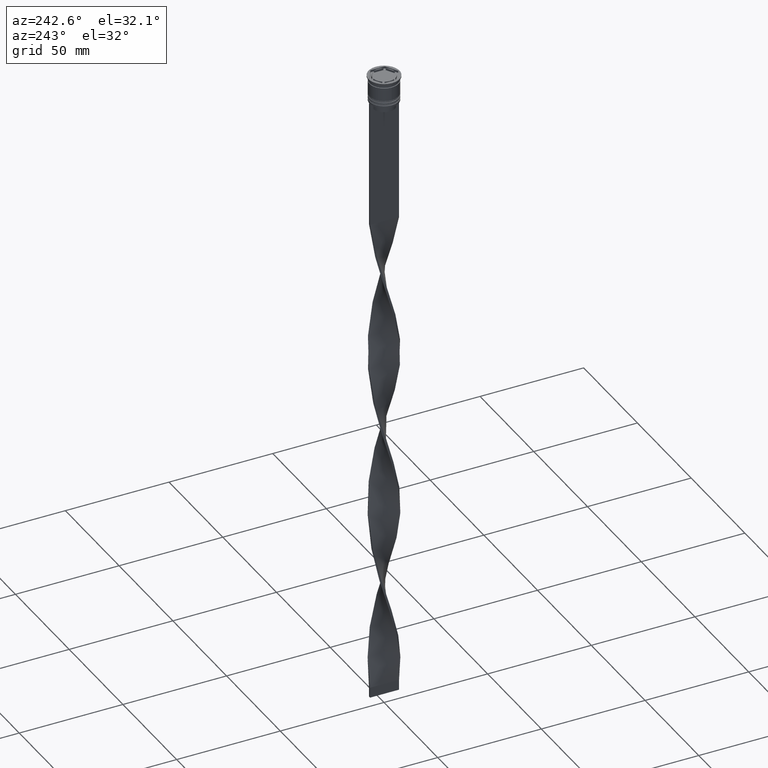
[diagram: clean part render]
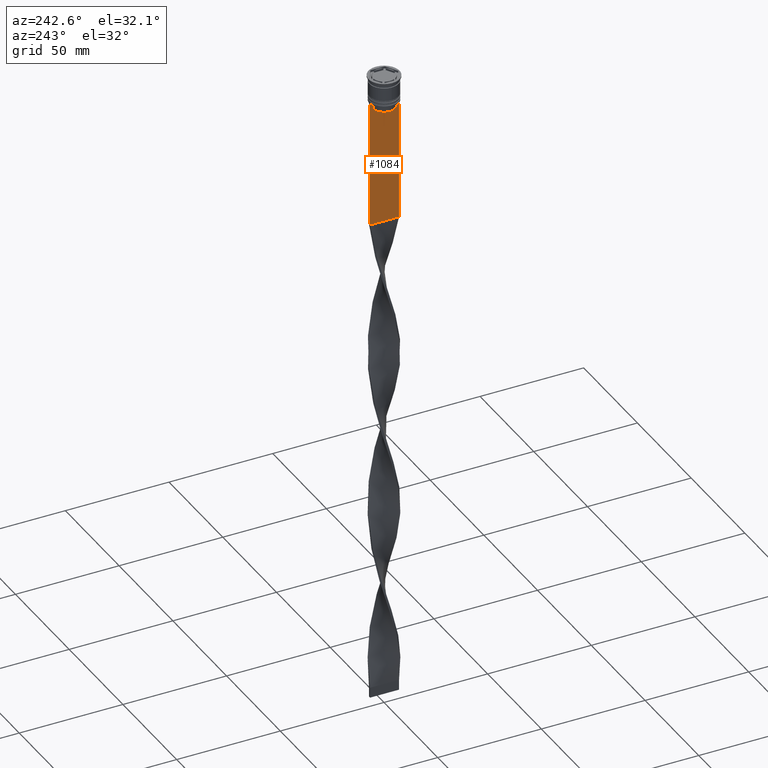
[diagram: same view with one face highlighted and labeled with its STEP entity id]
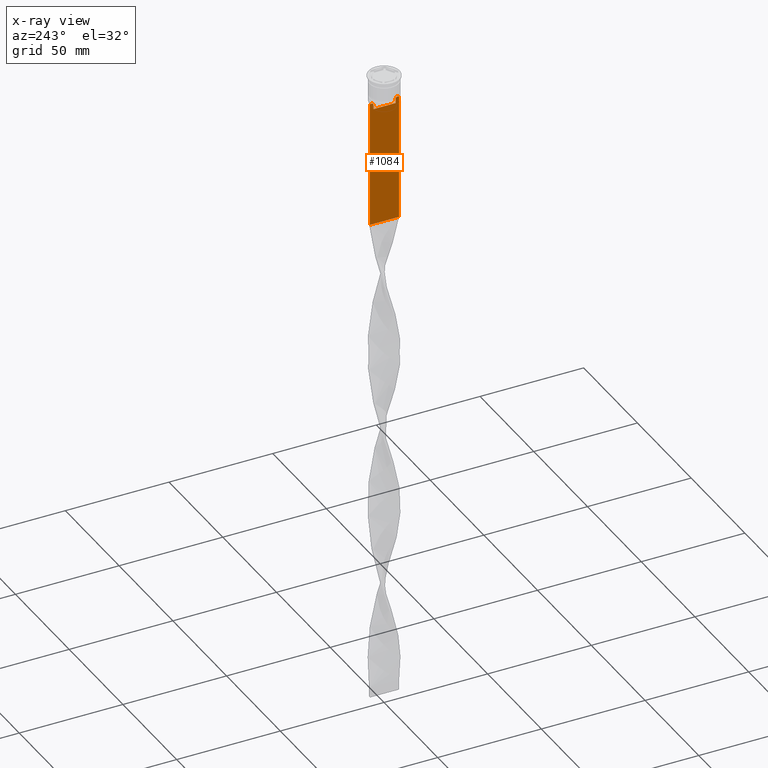
[diagram: x-ray of the same camera — body ghosted, the highlighted face saturated]
A machine part, auxiliary view. The second image highlights one B-rep face of the part: STEP entity #1084.
The next image is the same camera in x-ray: the body ghosted, the highlighted face saturated — about 0% of this face is hidden behind the body in this view.
In plain terms, the highlighted planar face has unit normal (-1, 0, 0).
Its self-contained STEP definition (entity closure, byte-faithful):
#43 = VERTEX_POINT ( 'NONE', #3678 ) ;
#84 = B_SPLINE_CURVE_WITH_KNOTS ( 'NONE', 3,
 ( #379, #2898, #2278, #706 ),
 .UNSPECIFIED., .F., .F.,
 ( 4, 4 ),
 ( 0.01003009312103698807, 0.01073859663834952557 ),
 .UNSPECIFIED. ) ;
#130 = EDGE_CURVE ( 'NONE', #43, #486, #3761, .T. ) ;
#164 = VECTOR ( 'NONE', #2920, 1000.000000000000000 ) ;
#177 = EDGE_LOOP ( 'NONE', ( #3302, #2342, #4015, #3136, #2027, #2929, #261, #3930, #2689, #2105, #2482, #1439 ) ) ;
#238 = CARTESIAN_POINT ( 'NONE',  ( -0.5000000000000000000, 7.000000000000002665, 1.535668847618198329 ) ) ;
#261 = ORIENTED_EDGE ( 'NONE', *, *, #1901, .F. ) ;
#286 = EDGE_CURVE ( 'NONE', #437, #2560, #686, .T. ) ;
#337 = EDGE_CURVE ( 'NONE', #2011, #3212, #4112, .T. ) ;
#377 = VECTOR ( 'NONE', #3650, 1000.000000000000000 ) ;
#379 = CARTESIAN_POINT ( 'NONE',  ( -0.5000000000000000000, 5.878775382679629402, -12.50000000000000000 ) ) ;
#389 = VECTOR ( 'NONE', #2487, 1000.000000000000000 ) ;
#437 = VERTEX_POINT ( 'NONE', #1388 ) ;
#453 = CARTESIAN_POINT ( 'NONE',  ( -0.5000000000000000000, -6.999999999999997335, -73.50000000000001421 ) ) ;
#486 = VERTEX_POINT ( 'NONE', #827 ) ;
#539 = EDGE_CURVE ( 'NONE', #3212, #437, #1675, .T. ) ;
#621 = CARTESIAN_POINT ( 'NONE',  ( -0.5000000000000000000, 6.881860213634102053, -12.50000000000000000 ) ) ;
#686 = LINE ( 'NONE', #2527, #164 ) ;
#706 = CARTESIAN_POINT ( 'NONE',  ( -0.5000000000000000000, 5.376802023508029826, -13.00000000000000178 ) ) ;
#719 = CARTESIAN_POINT ( 'NONE',  ( -0.5000000000000000000, -5.878775382679629402, -12.50000000000000000 ) ) ;
#727 = DIRECTION ( 'NONE',  ( 0.000000000000000000, 0.000000000000000000, -1.000000000000000000 ) ) ;
#807 = EDGE_CURVE ( 'NONE', #3461, #486, #4066, .T. ) ;
#820 = FACE_OUTER_BOUND ( 'NONE', #177, .T. ) ;
#827 = CARTESIAN_POINT ( 'NONE',  ( -0.5000000000000000000, 7.000000000000002665, -73.50000000000001421 ) ) ;
#841 = PLANE ( 'NONE',  #957 ) ;
#957 = AXIS2_PLACEMENT_3D ( 'NONE', #1751, #1812, #2709 ) ;
#964 = LINE ( 'NONE', #2502, #2818 ) ;
#1084 = ADVANCED_FACE ( 'NONE', ( #820 ), #841, .T. ) ;
#1097 = CARTESIAN_POINT ( 'NONE',  ( -0.5000000000000000000, 5.400000000000003908, -15.50000000000000000 ) ) ;
#1107 = LINE ( 'NONE', #3997, #1703 ) ;
#1148 = CARTESIAN_POINT ( 'NONE',  ( -0.5000000000000000000, -5.711478856069293286, -12.66669469529570335 ) ) ;
#1150 = VECTOR ( 'NONE', #3114, 1000.000000000000000 ) ;
#1388 = CARTESIAN_POINT ( 'NONE',  ( -0.5000000000000000000, -5.376802023508029826, -15.50000000000000000 ) ) ;
#1439 = ORIENTED_EDGE ( 'NONE', *, *, #337, .F. ) ;
#1448 = CARTESIAN_POINT ( 'NONE',  ( -0.5000000000000000000, -5.544156999454441959, -12.83336396790503642 ) ) ;
#1483 = DIRECTION ( 'NONE',  ( 0.000000000000000000, -1.000000000000000000, 0.000000000000000000 ) ) ;
#1544 = CARTESIAN_POINT ( 'NONE',  ( -0.5000000000000000000, -6.999999999999997335, -12.50000000000000000 ) ) ;
#1550 = CARTESIAN_POINT ( 'NONE',  ( -0.5000000000000000000, -6.999999999999997335, -73.50000000000001421 ) ) ;
#1553 = CARTESIAN_POINT ( 'NONE',  ( -0.5000000000000000000, -6.999999999999997335, 1.535668847618198329 ) ) ;
#1670 = EDGE_CURVE ( 'NONE', #1860, #2981, #2734, .T. ) ;
#1675 = LINE ( 'NONE', #1097, #2746 ) ;
#1703 = VECTOR ( 'NONE', #3638, 1000.000000000000000 ) ;
#1751 = CARTESIAN_POINT ( 'NONE',  ( -0.5000000000000000000, -6.999999999999997335, 1.535668847618198329 ) ) ;
#1795 = CARTESIAN_POINT ( 'NONE',  ( -0.5000000000000000000, 5.878775382679629402, -12.50000000000000000 ) ) ;
#1812 = DIRECTION ( 'NONE',  ( -1.000000000000000000, 0.000000000000000000, 0.000000000000000000 ) ) ;
#1836 = CARTESIAN_POINT ( 'NONE',  ( -0.5000000000000000000, -5.376802023508029826, -13.00000000000000178 ) ) ;
#1860 = VERTEX_POINT ( 'NONE', #621 ) ;
#1867 = VERTEX_POINT ( 'NONE', #3768 ) ;
#1901 = EDGE_CURVE ( 'NONE', #1867, #3152, #964, .T. ) ;
#2011 = VERTEX_POINT ( 'NONE', #2602 ) ;
#2027 = ORIENTED_EDGE ( 'NONE', *, *, #807, .F. ) ;
#2069 = B_SPLINE_CURVE_WITH_KNOTS ( 'NONE', 3,
 ( #1836, #1448, #1148, #3057 ),
 .UNSPECIFIED., .F., .F.,
 ( 4, 4 ),
 ( 0.02539176325380714666, 0.02610162431828674801 ),
 .UNSPECIFIED. ) ;
#2088 = VECTOR ( 'NONE', #2815, 1000.000000000000000 ) ;
#2105 = ORIENTED_EDGE ( 'NONE', *, *, #286, .F. ) ;
#2209 = CARTESIAN_POINT ( 'NONE',  ( -0.5000000000000000000, 5.376802023508029826, -15.50000000000000000 ) ) ;
#2278 = CARTESIAN_POINT ( 'NONE',  ( -0.5000000000000000000, 5.544156989057553275, -12.83336397825725861 ) ) ;
#2279 = CARTESIAN_POINT ( 'NONE',  ( -0.5000000000000000000, 5.376802023508029826, 0.000000000000000000 ) ) ;
#2339 = EDGE_CURVE ( 'NONE', #3376, #1867, #2996, .T. ) ;
#2342 = ORIENTED_EDGE ( 'NONE', *, *, #1670, .F. ) ;
#2482 = ORIENTED_EDGE ( 'NONE', *, *, #539, .F. ) ;
#2487 = DIRECTION ( 'NONE',  ( 0.000000000000000000, 0.000000000000000000, -1.000000000000000000 ) ) ;
#2502 = CARTESIAN_POINT ( 'NONE',  ( -0.5000000000000000000, -6.999999999999997335, -12.50000000000000000 ) ) ;
#2527 = CARTESIAN_POINT ( 'NONE',  ( -0.5000000000000000000, -5.376802023508029826, 0.000000000000000000 ) ) ;
#2560 = VERTEX_POINT ( 'NONE', #4059 ) ;
#2602 = CARTESIAN_POINT ( 'NONE',  ( -0.5000000000000000000, 5.376802023508029826, -13.00000000000000178 ) ) ;
#2689 = ORIENTED_EDGE ( 'NONE', *, *, #3008, .F. ) ;
#2709 = DIRECTION ( 'NONE',  ( 0.000000000000000000, 0.000000000000000000, 1.000000000000000000 ) ) ;
#2734 = LINE ( 'NONE', #3990, #377 ) ;
#2746 = VECTOR ( 'NONE', #2965, 1000.000000000000000 ) ;
#2815 = DIRECTION ( 'NONE',  ( 0.000000000000000000, 1.000000000000000000, 0.000000000000000000 ) ) ;
#2818 = VECTOR ( 'NONE', #3120, 1000.000000000000000 ) ;
#2898 = CARTESIAN_POINT ( 'NONE',  ( -0.5000000000000000000, 5.711478846560141598, -12.66669470477064685 ) ) ;
#2920 = DIRECTION ( 'NONE',  ( -0.000000000000000000, -0.000000000000000000, 1.000000000000000000 ) ) ;
#2929 = ORIENTED_EDGE ( 'NONE', *, *, #3751, .F. ) ;
#2965 = DIRECTION ( 'NONE',  ( 0.000000000000000000, -1.000000000000000000, 0.000000000000000000 ) ) ;
#2981 = VERTEX_POINT ( 'NONE', #1795 ) ;
#2996 = LINE ( 'NONE', #3982, #3419 ) ;
#3008 = EDGE_CURVE ( 'NONE', #2560, #3376, #2069, .T. ) ;
#3057 = CARTESIAN_POINT ( 'NONE',  ( -0.5000000000000000000, -5.878775382679629402, -12.50000000000000000 ) ) ;
#3075 = VECTOR ( 'NONE', #727, 1000.000000000000000 ) ;
#3114 = DIRECTION ( 'NONE',  ( 0.000000000000000000, 0.000000000000000000, -1.000000000000000000 ) ) ;
#3120 = DIRECTION ( 'NONE',  ( 0.000000000000000000, -1.000000000000000000, 0.000000000000000000 ) ) ;
#3136 = ORIENTED_EDGE ( 'NONE', *, *, #130, .T. ) ;
#3152 = VERTEX_POINT ( 'NONE', #1544 ) ;
#3212 = VERTEX_POINT ( 'NONE', #2209 ) ;
#3302 = ORIENTED_EDGE ( 'NONE', *, *, #3946, .F. ) ;
#3376 = VERTEX_POINT ( 'NONE', #719 ) ;
#3419 = VECTOR ( 'NONE', #1483, 1000.000000000000000 ) ;
#3461 = VERTEX_POINT ( 'NONE', #453 ) ;
#3601 = EDGE_CURVE ( 'NONE', #43, #1860, #1107, .T. ) ;
#3638 = DIRECTION ( 'NONE',  ( 0.000000000000000000, -1.000000000000000000, 0.000000000000000000 ) ) ;
#3650 = DIRECTION ( 'NONE',  ( 0.000000000000000000, -1.000000000000000000, 0.000000000000000000 ) ) ;
#3678 = CARTESIAN_POINT ( 'NONE',  ( -0.5000000000000000000, 7.000000000000002665, -12.50000000000000000 ) ) ;
#3751 = EDGE_CURVE ( 'NONE', #3152, #3461, #4068, .T. ) ;
#3761 = LINE ( 'NONE', #238, #1150 ) ;
#3768 = CARTESIAN_POINT ( 'NONE',  ( -0.5000000000000000000, -6.881860213634102053, -12.50000000000000000 ) ) ;
#3930 = ORIENTED_EDGE ( 'NONE', *, *, #2339, .F. ) ;
#3946 = EDGE_CURVE ( 'NONE', #2981, #2011, #84, .T. ) ;
#3982 = CARTESIAN_POINT ( 'NONE',  ( -0.5000000000000000000, -6.999999999999997335, -12.50000000000000000 ) ) ;
#3990 = CARTESIAN_POINT ( 'NONE',  ( -0.5000000000000000000, -6.999999999999997335, -12.50000000000000000 ) ) ;
#3997 = CARTESIAN_POINT ( 'NONE',  ( -0.5000000000000000000, -6.999999999999997335, -12.50000000000000000 ) ) ;
#4015 = ORIENTED_EDGE ( 'NONE', *, *, #3601, .F. ) ;
#4059 = CARTESIAN_POINT ( 'NONE',  ( -0.5000000000000000000, -5.376802023508029826, -13.00000000000000178 ) ) ;
#4066 = LINE ( 'NONE', #1550, #2088 ) ;
#4068 = LINE ( 'NONE', #1553, #389 ) ;
#4112 = LINE ( 'NONE', #2279, #3075 ) ;